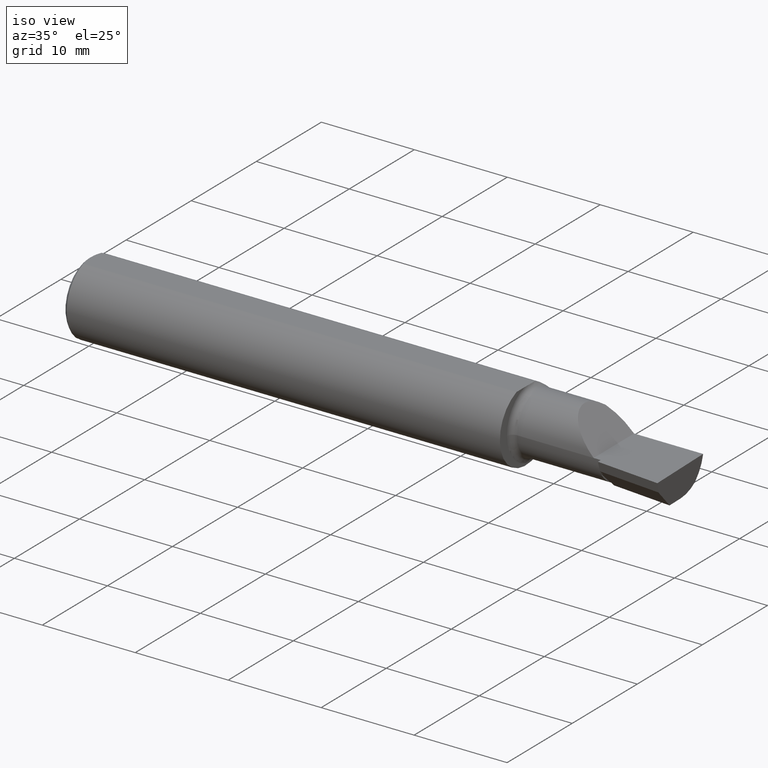
[diagram: clean part render]
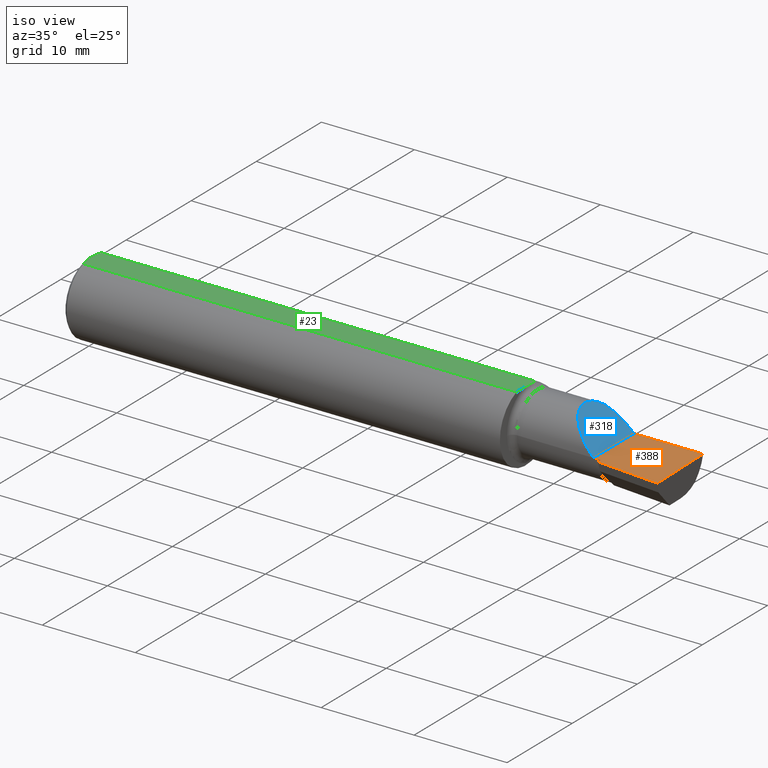
[diagram: same view with three faces highlighted in distinct colors, each labeled with its STEP entity id]
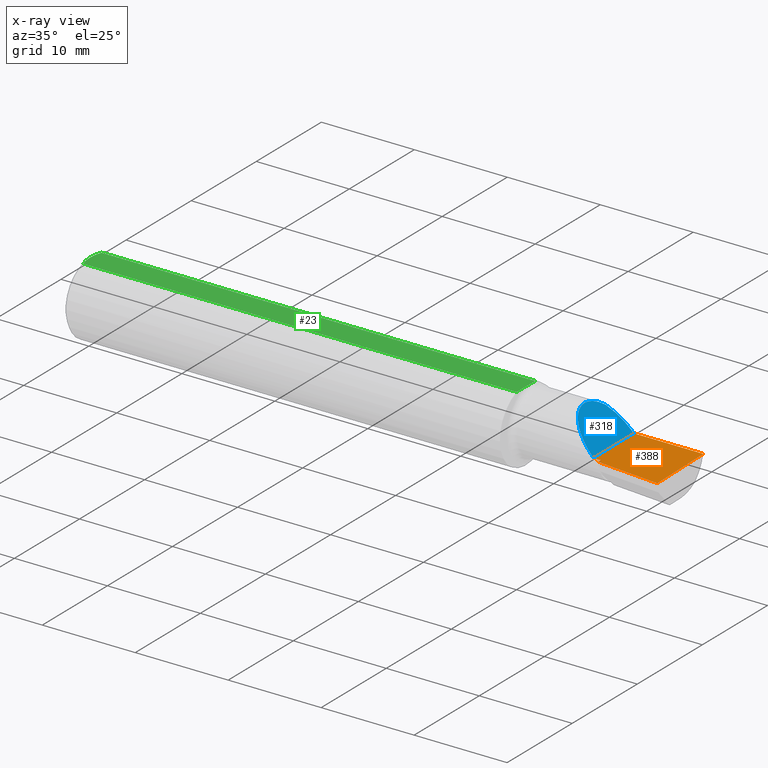
[diagram: x-ray of the same camera — body ghosted, the three highlighted faces saturated]
A machine part, iso view with three faces highlighted in distinct colors.
The next image is the same camera in x-ray (body ghosted, the three faces saturated) — at least one of them is partly hidden behind the body in this view.
Their STEP definitions:

[orange] entity #388 — the highlighted planar face has unit normal (-0, 0, -1).
#1 = FACE_OUTER_BOUND ( 'NONE', #699, .T. ) ;
#4 = ORIENTED_EDGE ( 'NONE', *, *, #456, .T. ) ;
#6 = DIRECTION ( 'NONE',  ( 0.9953961983671787417, -0.09584575252022418945, -9.831095531899266013E-17 ) ) ;
#10 = LINE ( 'NONE', #165, #535 ) ;
#25 = EDGE_CURVE ( 'NONE', #449, #508, #447, .T. ) ;
#45 = DIRECTION ( 'NONE',  ( -0.000000000000000000, 1.000000000000000000, -0.000000000000000000 ) ) ;
#53 = VECTOR ( 'NONE', #548, 39.37007874015748143 ) ;
#63 = CARTESIAN_POINT ( 'NONE',  ( 2.500000000000000000, -0.1319000000000001283, 8.537024980200822558E-17 ) ) ;
#66 = ORIENTED_EDGE ( 'NONE', *, *, #310, .T. ) ;
#68 = CARTESIAN_POINT ( 'NONE',  ( 2.200000000000000178, 0.1560999999999997667, 9.797174393178826150E-17 ) ) ;
#107 = CARTESIAN_POINT ( 'NONE',  ( 3.121792066109142165E-32, 0.1560999999999999333, 3.155924005931204823E-16 ) ) ;
#113 = DIRECTION ( 'NONE',  ( -9.891848030060559526E-17, 0.000000000000000000, -1.000000000000000000 ) ) ;
#160 = ORIENTED_EDGE ( 'NONE', *, *, #435, .T. ) ;
#165 = CARTESIAN_POINT ( 'NONE',  ( 2.511267271176985005, -0.1329849148174155893, 6.718165849964441477E-17 ) ) ;
#203 = LINE ( 'NONE', #270, #206 ) ;
#206 = VECTOR ( 'NONE', #592, 39.37007874015748143 ) ;
#211 = LINE ( 'NONE', #326, #53 ) ;
#225 = CARTESIAN_POINT ( 'NONE',  ( 2.229999999999999982, -0.08890000000000000679, 0.000000000000000000 ) ) ;
#270 = CARTESIAN_POINT ( 'NONE',  ( 2.229999999999999982, -0.2500000000000000555, 9.500418952277011559E-17 ) ) ;
#271 = ORIENTED_EDGE ( 'NONE', *, *, #25, .F. ) ;
#310 = EDGE_CURVE ( 'NONE', #477, #432, #203, .T. ) ;
#311 = LINE ( 'NONE', #529, #437 ) ;
#320 = CARTESIAN_POINT ( 'NONE',  ( 2.200000000000000178, -0.08890000000000007618, 9.797174393178826150E-17 ) ) ;
#326 = CARTESIAN_POINT ( 'NONE',  ( -8.735083959741170053E-19, -0.08889999999999999292, 3.155924005931204823E-16 ) ) ;
#337 = LINE ( 'NONE', #558, #660 ) ;
#338 = DIRECTION ( 'NONE',  ( 1.000000000000000000, 0.000000000000000000, 0.000000000000000000 ) ) ;
#339 = EDGE_CURVE ( 'NONE', #363, #449, #311, .T. ) ;
#363 = VERTEX_POINT ( 'NONE', #320 ) ;
#387 = DIRECTION ( 'NONE',  ( -1.000000000000000000, 0.000000000000000000, 9.891848030060559526E-17 ) ) ;
#388 = ADVANCED_FACE ( 'NONE', ( #1 ), #446, .F. ) ;
#403 = ORIENTED_EDGE ( 'NONE', *, *, #510, .T. ) ;
#432 = VERTEX_POINT ( 'NONE', #612 ) ;
#433 = CARTESIAN_POINT ( 'NONE',  ( 2.500000000000000000, -0.2500000000000000555, 6.829619984160658046E-17 ) ) ;
#435 = EDGE_CURVE ( 'NONE', #560, #508, #337, .T. ) ;
#437 = VECTOR ( 'NONE', #45, 39.37007874015748143 ) ;
#440 = DIRECTION ( 'NONE',  ( -0.02677973311239119011, 0.9996413586354002678, 2.612414329932813452E-18 ) ) ;
#446 = PLANE ( 'NONE',  #590 ) ;
#447 = LINE ( 'NONE', #107, #586 ) ;
#449 = VERTEX_POINT ( 'NONE', #68 ) ;
#456 = EDGE_CURVE ( 'NONE', #432, #560, #10, .T. ) ;
#477 = VERTEX_POINT ( 'NONE', #225 ) ;
#508 = VERTEX_POINT ( 'NONE', #604 ) ;
#510 = EDGE_CURVE ( 'NONE', #363, #477, #211, .T. ) ;
#529 = CARTESIAN_POINT ( 'NONE',  ( 2.200000000000000178, -0.2500000000000000555, 9.797174393178826150E-17 ) ) ;
#535 = VECTOR ( 'NONE', #6, 39.37007874015748143 ) ;
#548 = DIRECTION ( 'NONE',  ( 1.000000000000000000, -6.829619984160658046E-18, 0.000000000000000000 ) ) ;
#558 = CARTESIAN_POINT ( 'NONE',  ( 2.503161552210378282, -0.2499153041001321018, 6.798346390156494500E-17 ) ) ;
#560 = VERTEX_POINT ( 'NONE', #63 ) ;
#586 = VECTOR ( 'NONE', #338, 39.37007874015748143 ) ;
#590 = AXIS2_PLACEMENT_3D ( 'NONE', #433, #113, #387 ) ;
#592 = DIRECTION ( 'NONE',  ( -6.829619984160658816E-18, -1.000000000000000000, 6.755756298638184848E-34 ) ) ;
#597 = ORIENTED_EDGE ( 'NONE', *, *, #339, .F. ) ;
#604 = CARTESIAN_POINT ( 'NONE',  ( 2.492284669827090404, 0.1560999999999998500, 6.904452464043948710E-17 ) ) ;
#612 = CARTESIAN_POINT ( 'NONE',  ( 2.229999999999999982, -0.1059019569866646304, 9.497440290473414864E-17 ) ) ;
#660 = VECTOR ( 'NONE', #440, 39.37007874015748854 ) ;
#699 = EDGE_LOOP ( 'NONE', ( #4, #160, #271, #597, #403, #66 ) ) ;

[blue] entity #318 — the highlighted planar face has unit normal (-0.7071, 0, -0.7071).
#38 = CARTESIAN_POINT ( 'NONE',  ( 2.200000000000000178, 0.1560999999999997667, 9.797174393178826150E-17 ) ) ;
#45 = DIRECTION ( 'NONE',  ( -0.000000000000000000, 1.000000000000000000, -0.000000000000000000 ) ) ;
#68 = CARTESIAN_POINT ( 'NONE',  ( 2.200000000000000178, 0.1560999999999997667, 9.797174393178826150E-17 ) ) ;
#87 = ORIENTED_EDGE ( 'NONE', *, *, #231, .T. ) ;
#104 = EDGE_CURVE ( 'NONE', #489, #449, #407, .T. ) ;
#112 = EDGE_LOOP ( 'NONE', ( #157, #87, #119 ) ) ;
#119 = ORIENTED_EDGE ( 'NONE', *, *, #339, .T. ) ;
#122 = CARTESIAN_POINT ( 'NONE',  ( 2.164368501139629419, 0.1560999999999999888, 0.03563149886037008524 ) ) ;
#157 = ORIENTED_EDGE ( 'NONE', *, *, #104, .F. ) ;
#231 = EDGE_CURVE ( 'NONE', #489, #363, #297, .T. ) ;
#294 = CARTESIAN_POINT ( 'NONE',  ( 2.130728481662468532, 0.1443546689866652133, 0.06927151833753075749 ) ) ;
#297 =( BOUNDED_CURVE ( )  B_SPLINE_CURVE ( 3, ( #479, #688, #372, #692 ),
 .UNSPECIFIED., .F., .F. ) 
 B_SPLINE_CURVE_WITH_KNOTS ( ( 4, 4 ),
 ( 5.575169463880066623, 7.853981633974482790 ),
 .UNSPECIFIED. ) 
 CURVE ( )  GEOMETRIC_REPRESENTATION_ITEM ( )  RATIONAL_B_SPLINE_CURVE ( ( 1.000000000000000000, 0.6120893875309951770, 0.6120893875309951770, 1.000000000000000000 ) ) 
 REPRESENTATION_ITEM ( '' )  );
#311 = LINE ( 'NONE', #529, #437 ) ;
#318 = ADVANCED_FACE ( 'NONE', ( #540 ), #476, .F. ) ;
#320 = CARTESIAN_POINT ( 'NONE',  ( 2.200000000000000178, -0.08890000000000007618, 9.797174393178826150E-17 ) ) ;
#339 = EDGE_CURVE ( 'NONE', #363, #449, #311, .T. ) ;
#359 = CARTESIAN_POINT ( 'NONE',  ( 2.102840288866959728, 0.1221769230769229192, 0.09715971113303935314 ) ) ;
#363 = VERTEX_POINT ( 'NONE', #320 ) ;
#372 = CARTESIAN_POINT ( 'NONE',  ( 2.073458044061706751, -0.08890000000000000679, 0.1265419559382920667 ) ) ;
#407 =( BOUNDED_CURVE ( )  B_SPLINE_CURVE ( 3, ( #359, #294, #122, #38 ),
 .UNSPECIFIED., .F., .T. ) 
 B_SPLINE_CURVE_WITH_KNOTS ( ( 4, 4 ),
 ( 0.8989658999765582914, 1.570796326794896336 ),
 .UNSPECIFIED. ) 
 CURVE ( )  GEOMETRIC_REPRESENTATION_ITEM ( )  RATIONAL_B_SPLINE_CURVE ( ( 1.000000000000000000, 0.9627393467969930230, 0.9627393467969930230, 1.000000000000000000 ) ) 
 REPRESENTATION_ITEM ( '' )  );
#437 = VECTOR ( 'NONE', #45, 39.37007874015748143 ) ;
#449 = VERTEX_POINT ( 'NONE', #68 ) ;
#476 = PLANE ( 'NONE',  #556 ) ;
#479 = CARTESIAN_POINT ( 'NONE',  ( 2.102840288866959728, 0.1221769230769229192, 0.09715971113303935314 ) ) ;
#487 = CARTESIAN_POINT ( 'NONE',  ( 2.102840288866959728, 0.1221769230769229192, 0.09715971113303935314 ) ) ;
#489 = VERTEX_POINT ( 'NONE', #487 ) ;
#529 = CARTESIAN_POINT ( 'NONE',  ( 2.200000000000000178, -0.2500000000000000555, 9.797174393178826150E-17 ) ) ;
#533 = CARTESIAN_POINT ( 'NONE',  ( 2.200000000000000178, -0.2500000000000000555, 9.797174393178826150E-17 ) ) ;
#540 = FACE_OUTER_BOUND ( 'NONE', #112, .T. ) ;
#556 = AXIS2_PLACEMENT_3D ( 'NONE', #533, #639, #588 ) ;
#588 = DIRECTION ( 'NONE',  ( -0.7071067811865507924, 0.000000000000000000, 0.7071067811865442421 ) ) ;
#639 = DIRECTION ( 'NONE',  ( -0.7071067811865442421, 0.000000000000000000, -0.7071067811865507924 ) ) ;
#688 = CARTESIAN_POINT ( 'NONE',  ( 2.020546539569987754, 0.02604885517094747416, 0.1794534604300110914 ) ) ;
#692 = CARTESIAN_POINT ( 'NONE',  ( 2.200000000000000178, -0.08890000000000007618, 9.797174393178826150E-17 ) ) ;

[green] entity #23 — the highlighted planar face has unit normal (0, -0, -1).
#7 = CARTESIAN_POINT ( 'NONE',  ( 0.005000000000000177913, 2.057148876208899831E-17, 0.1460999999999999799 ) ) ;
#14 = CARTESIAN_POINT ( 'NONE',  ( 2.500000000000000000, 0.2061000000000000332, 0.1460999999999999521 ) ) ;
#22 = CARTESIAN_POINT ( 'NONE',  ( 0.01499999999999999424, 0.05497272050753903433, 0.1460999999999999521 ) ) ;
#23 = ADVANCED_FACE ( 'NONE', ( #499 ), #616, .F. ) ;
#26 = CARTESIAN_POINT ( 'NONE',  ( 0.01499999999999999944, -0.05497272050753897882, 0.1461000000000000076 ) ) ;
#37 = EDGE_CURVE ( 'NONE', #91, #74, #217, .T. ) ;
#46 = ORIENTED_EDGE ( 'NONE', *, *, #670, .F. ) ;
#60 = LINE ( 'NONE', #279, #229 ) ;
#73 = CARTESIAN_POINT ( 'NONE',  ( 0.009371209226504017067, 0.03711161584255317364, 0.1460999999999999799 ) ) ;
#74 = VERTEX_POINT ( 'NONE', #22 ) ;
#75 = CARTESIAN_POINT ( 'NONE',  ( 1.851002510363910059, 0.03462329751451400511, 0.1460999999999999799 ) ) ;
#78 = CARTESIAN_POINT ( 'NONE',  ( 1.849999999999999867, 0.004133650856200373619, 0.1460999999999999521 ) ) ;
#84 = CARTESIAN_POINT ( 'NONE',  ( 0.000000000000000000, 0.05497272050753903433, 0.1460999999999999521 ) ) ;
#91 = VERTEX_POINT ( 'NONE', #109 ) ;
#95 = ORIENTED_EDGE ( 'NONE', *, *, #677, .F. ) ;
#99 = VERTEX_POINT ( 'NONE', #330 ) ;
#100 = VERTEX_POINT ( 'NONE', #554 ) ;
#109 = CARTESIAN_POINT ( 'NONE',  ( 0.005000000000000177913, 2.057148876208899831E-17, 0.1460999999999999799 ) ) ;
#114 = CARTESIAN_POINT ( 'NONE',  ( 0.005929349363809115203, 0.01879672308419498561, 0.1461000000000000076 ) ) ;
#120 = LINE ( 'NONE', #453, #227 ) ;
#125 = CARTESIAN_POINT ( 'NONE',  ( 1.850497536416571442, 0.01428560316177526941, 0.1461000000000000076 ) ) ;
#134 = CARTESIAN_POINT ( 'NONE',  ( 1.850713348720346207, 0.05497272050753925637, 0.1460999999999999521 ) ) ;
#163 = ORIENTED_EDGE ( 'NONE', *, *, #191, .F. ) ;
#184 = CARTESIAN_POINT ( 'NONE',  ( 1.850713348720346207, 0.05497272050753925637, 0.1460999999999999521 ) ) ;
#187 = CARTESIAN_POINT ( 'NONE',  ( 0.009356849677356088302, -0.03706298561014170767, 0.1461000000000000354 ) ) ;
#191 = EDGE_CURVE ( 'NONE', #74, #600, #454, .T. ) ;
#201 = ORIENTED_EDGE ( 'NONE', *, *, #542, .T. ) ;
#216 = CARTESIAN_POINT ( 'NONE',  ( 0.01187749995209277584, 0.04610609988228757394, 0.1460999999999999799 ) ) ;
#217 = B_SPLINE_CURVE_WITH_KNOTS ( 'NONE', 3,
 ( #7, #613, #114, #73, #216, #549 ),
 .UNSPECIFIED., .F., .F.,
 ( 4, 2, 4 ),
 ( 0.002884734412378666280, 0.003593604306281239329, 0.004302474200183812811 ),
 .UNSPECIFIED. ) ;
#227 = VECTOR ( 'NONE', #566, 39.37007874015748143 ) ;
#228 = ORIENTED_EDGE ( 'NONE', *, *, #602, .T. ) ;
#229 = VECTOR ( 'NONE', #555, 39.37007874015748143 ) ;
#268 = ORIENTED_EDGE ( 'NONE', *, *, #37, .F. ) ;
#279 = CARTESIAN_POINT ( 'NONE',  ( 1.850000000000000311, 0.2061000000000000332, 0.1460999999999999521 ) ) ;
#312 = VECTOR ( 'NONE', #678, 39.37007874015748143 ) ;
#316 = VERTEX_POINT ( 'NONE', #583 ) ;
#321 = EDGE_LOOP ( 'NONE', ( #201, #228, #163, #268, #46, #95 ) ) ;
#330 = CARTESIAN_POINT ( 'NONE',  ( 1.850000000000000311, -0.006091019061449604553, 0.1460999999999999799 ) ) ;
#334 = DIRECTION ( 'NONE',  ( 0.000000000000000000, -1.656870447394628111E-16, -1.000000000000000000 ) ) ;
#401 = CARTESIAN_POINT ( 'NONE',  ( 1.850983344077626880, 0.04479712784712936574, 0.1460999999999999799 ) ) ;
#405 = CARTESIAN_POINT ( 'NONE',  ( 1.850000000000000311, -0.006091019061449604553, 0.1460999999999999799 ) ) ;
#410 = CARTESIAN_POINT ( 'NONE',  ( 0.01190375560897322625, -0.04618065518901639382, 0.1461000000000000076 ) ) ;
#450 = CARTESIAN_POINT ( 'NONE',  ( 0.005000000000000139749, -0.009384304010803560733, 0.1460999999999999799 ) ) ;
#453 = CARTESIAN_POINT ( 'NONE',  ( 0.000000000000000000, -0.05497272050753897882, 0.1461000000000000076 ) ) ;
#454 = LINE ( 'NONE', #84, #312 ) ;
#493 = AXIS2_PLACEMENT_3D ( 'NONE', #14, #334, #603 ) ;
#499 = FACE_OUTER_BOUND ( 'NONE', #321, .T. ) ;
#542 = EDGE_CURVE ( 'NONE', #100, #99, #60, .T. ) ;
#549 = CARTESIAN_POINT ( 'NONE',  ( 0.01499999999999999424, 0.05497272050753903433, 0.1460999999999999521 ) ) ;
#554 = CARTESIAN_POINT ( 'NONE',  ( 1.850000000000000311, -0.05497272050753900657, 0.1461000000000000076 ) ) ;
#555 = DIRECTION ( 'NONE',  ( 6.829619984160658046E-18, 1.000000000000000000, -1.656870447394628111E-16 ) ) ;
#565 = B_SPLINE_CURVE_WITH_KNOTS ( 'NONE', 3,
 ( #405, #78, #125, #75, #401, #184 ),
 .UNSPECIFIED., .F., .F.,
 ( 4, 2, 4 ),
 ( 0.01118866809925246446, 0.01196373645042584852, 0.01273880480159923431 ),
 .UNSPECIFIED. ) ;
#566 = DIRECTION ( 'NONE',  ( -1.000000000000000000, -0.000000000000000000, -0.000000000000000000 ) ) ;
#575 = CARTESIAN_POINT ( 'NONE',  ( 0.005910707775482461519, -0.01866948012536269463, 0.1460999999999999799 ) ) ;
#583 = CARTESIAN_POINT ( 'NONE',  ( 0.01499999999999999944, -0.05497272050753897882, 0.1461000000000000076 ) ) ;
#600 = VERTEX_POINT ( 'NONE', #134 ) ;
#602 = EDGE_CURVE ( 'NONE', #99, #600, #565, .T. ) ;
#603 = DIRECTION ( 'NONE',  ( 0.000000000000000000, 1.000000000000000000, -1.656870447394628111E-16 ) ) ;
#613 = CARTESIAN_POINT ( 'NONE',  ( 0.005000000000000138882, 0.009391435229055633896, 0.1460999999999999521 ) ) ;
#616 = PLANE ( 'NONE',  #493 ) ;
#658 = B_SPLINE_CURVE_WITH_KNOTS ( 'NONE', 3,
 ( #26, #410, #187, #575, #450, #673 ),
 .UNSPECIFIED., .F., .F.,
 ( 4, 2, 4 ),
 ( 0.001468071159906499112, 0.002176402786142582479, 0.002884734412378666280 ),
 .UNSPECIFIED. ) ;
#670 = EDGE_CURVE ( 'NONE', #316, #91, #658, .T. ) ;
#673 = CARTESIAN_POINT ( 'NONE',  ( 0.005000000000000177913, 2.057148876208899831E-17, 0.1460999999999999799 ) ) ;
#677 = EDGE_CURVE ( 'NONE', #100, #316, #120, .T. ) ;
#678 = DIRECTION ( 'NONE',  ( 1.000000000000000000, 0.000000000000000000, 0.000000000000000000 ) ) ;